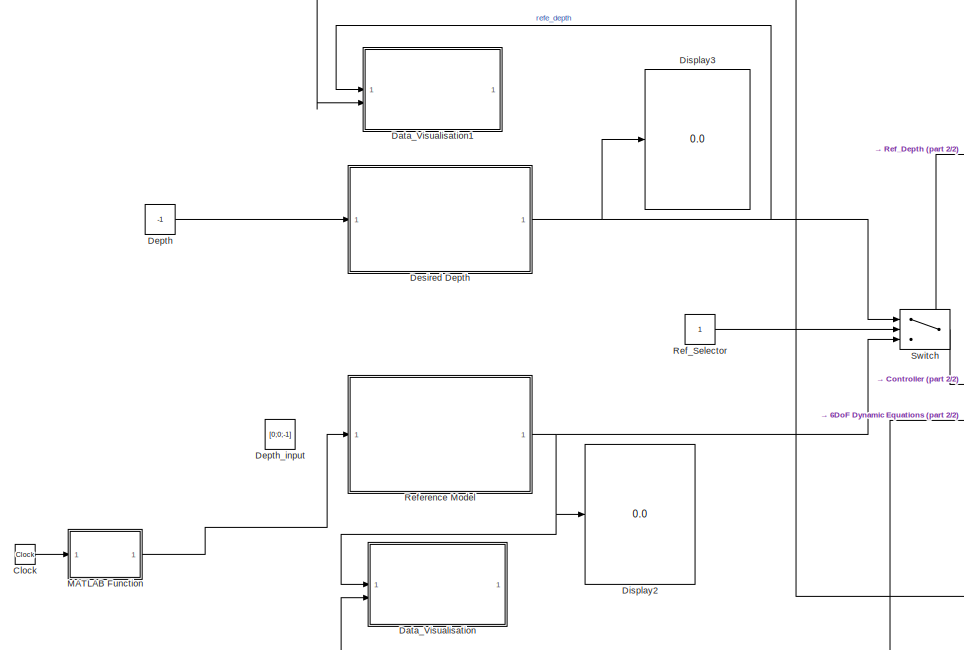
[diagram: root canvas - part 1/2, left side, full height]
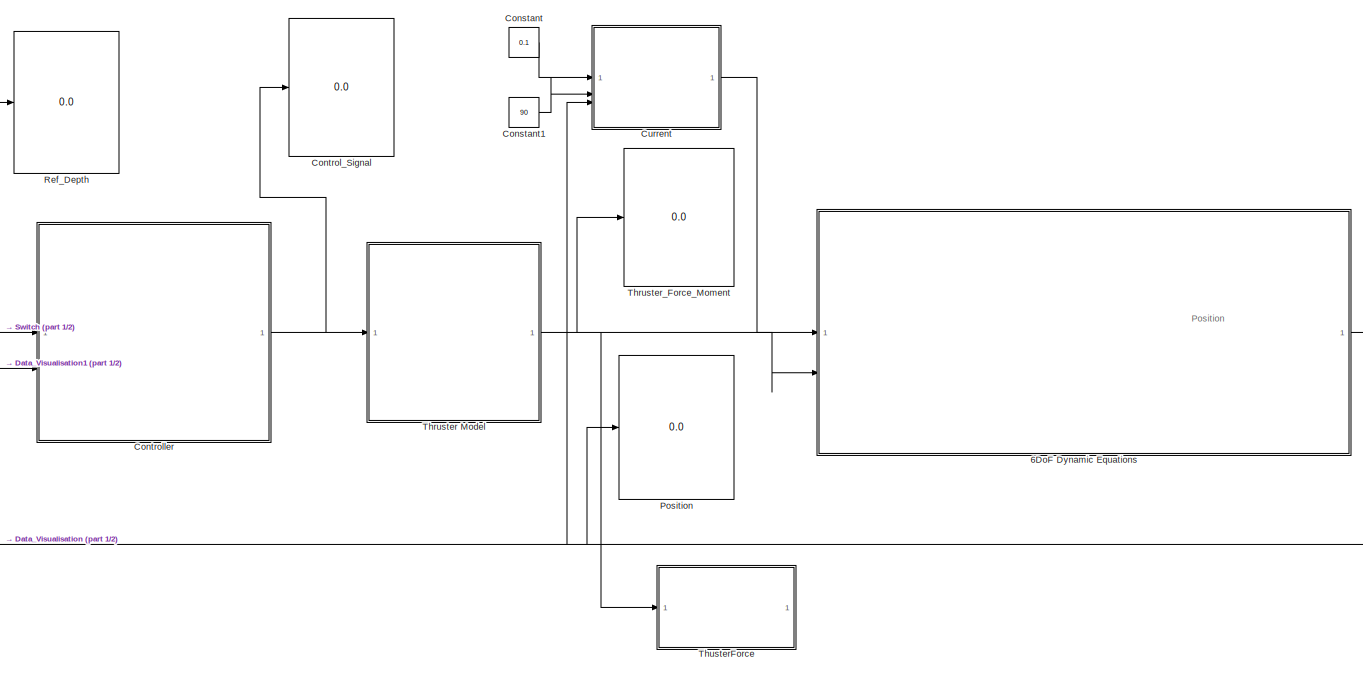
[diagram: root canvas - part 2/2, right side, full height]
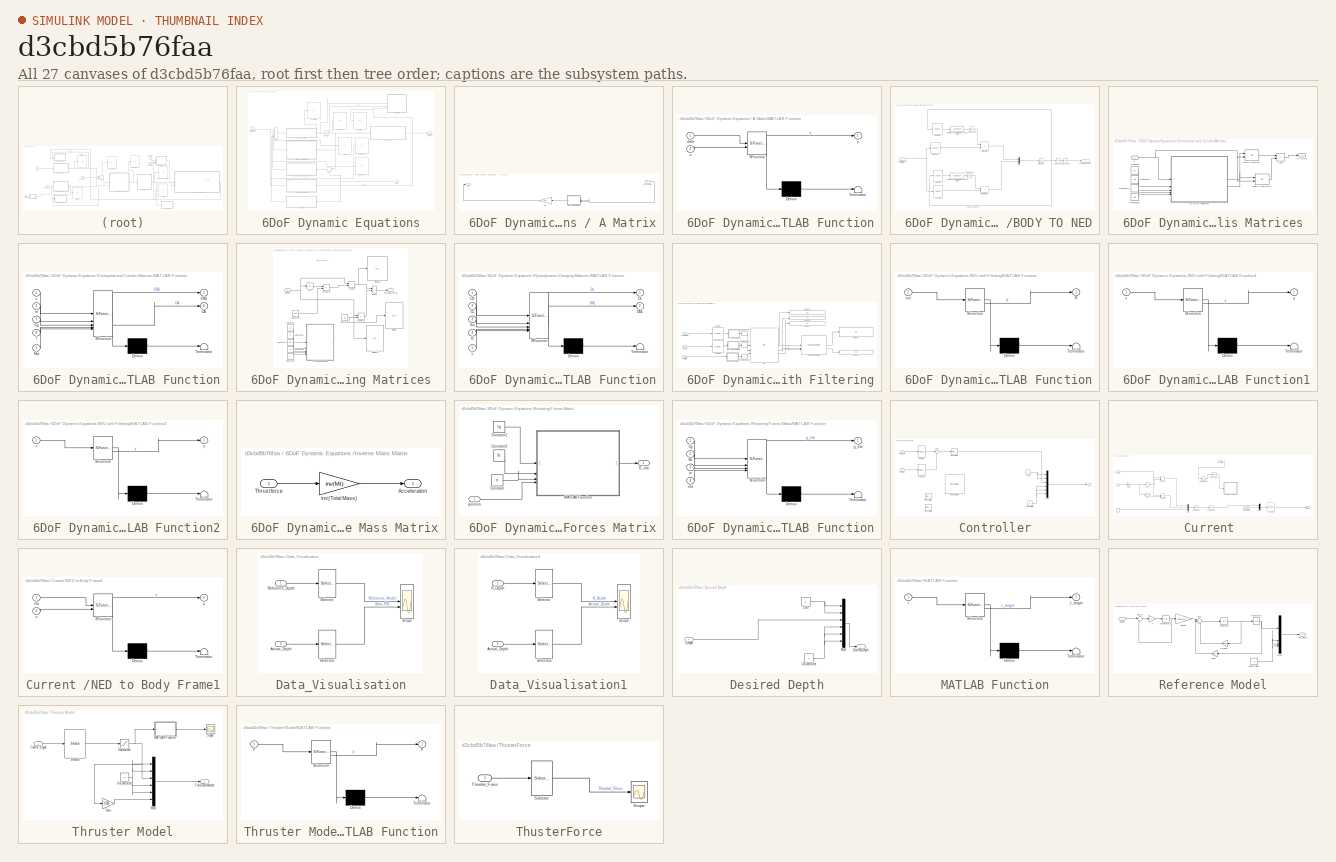
[diagram: thumbnail index - all 27 canvases of the model, root first then tree order]
MODEL slx_d3cbd5b76faa
KIND model
CONFIG AbsTol = auto
CONFIG EnableMultiTasking = off
CONFIG FixedStep = auto
CONFIG MaxStep = auto
CONFIG MinStep = auto
CONFIG RelTol = 1e-3
CONFIG SampleTimeConstraint = Unconstrained
CONFIG SolverName = VariableStepAuto
CONFIG StartTime = 0.0
CONFIG StopTime = 20
BLOCK [SubSystem]  6DoF Dynamic Equations 
BLOCK [SubSystem]  6DoF Dynamic Equations / A Matrix
BLOCK [Outport]  6DoF Dynamic Equations / A Matrix/Ac
BLOCK [Gain]  6DoF Dynamic Equations / A Matrix/MA
  Gain = Ma
  Multiplication = Matrix(K*u)
  OutDataTypeStr = Inherit: Same as input
  ParamDataTypeStr = Inherit: Same as input
BLOCK [SubSystem]  6DoF Dynamic Equations / A Matrix/MATLAB Function
  ErrorFcn = Stateflow.Translate.translate
  PermitHierarchicalResolution = ExplicitOnly
  SFBlockType = MATLAB Function
  TreatAsAtomicUnit = on
BLOCK [Demux]  6DoF Dynamic Equations / A Matrix/MATLAB Function/ Demux 
  Outputs = 1
BLOCK [S-Function]  6DoF Dynamic Equations / A Matrix/MATLAB Function/ SFunction 
  EnableBusSupport = on
  FunctionName = sf_sfun
  PortCounts = [2 2]
  SFcnIsStateOwnerBlock = off
  SFunctionDeploymentMode = off
  Tag = Stateflow S-Function 3
BLOCK [Terminator]  6DoF Dynamic Equations / A Matrix/MATLAB Function/ Terminator 
BLOCK [Inport]  6DoF Dynamic Equations / A Matrix/MATLAB Function/data
BLOCK [Inport]  6DoF Dynamic Equations / A Matrix/MATLAB Function/u
  Port = 2
BLOCK [Outport]  6DoF Dynamic Equations / A Matrix/MATLAB Function/y
BLOCK [Inport]  6DoF Dynamic Equations / A Matrix/currentvel
BLOCK [Display]  6DoF Dynamic Equations /Acceleration
  Decimation = 1
BLOCK [SubSystem]  6DoF Dynamic Equations /BODY TO NED
BLOCK [Outport]  6DoF Dynamic Equations /BODY TO NED/ Position(NED Frame)
BLOCK [Integrator]  6DoF Dynamic Equations /BODY TO NED/Integrator
BLOCK [Product]  6DoF Dynamic Equations /BODY TO NED/MatrixMultiply
  Multiplication = Matrix(*)
BLOCK [Product]  6DoF Dynamic Equations /BODY TO NED/MatrixMultiply1
  Multiplication = Matrix(*)
BLOCK [Mux]  6DoF Dynamic Equations /BODY TO NED/Mux
  DisplayOption = bar
  Inputs = 2
BLOCK [Angle2Dcm]  6DoF Dynamic Equations /BODY TO NED/Rotation Angles to Direction Cosine Matrix
  AttributesFormatString = Rotation Order: %<rotationOrder>
  rotationOrder = XYZ
BLOCK [Angle2Dcm]  6DoF Dynamic Equations /BODY TO NED/Rotation Angles to Direction Cosine Matrix1
  AttributesFormatString = Rotation Order: %<rotationOrder>
  rotationOrder = XYZ
BLOCK [Selector]  6DoF Dynamic Equations /BODY TO NED/Selector
  IndexOptions = Index vector (dialog)
  Indices = [1 2 3]
  InputPortWidth = 6
  OutputSizes = 1
BLOCK [Selector]  6DoF Dynamic Equations /BODY TO NED/Selector1
  IndexOptions = Index vector (dialog)
  Indices = [ 4 5 6]
  InputPortWidth = 6
  OutputSizes = 1
BLOCK [Selector]  6DoF Dynamic Equations /BODY TO NED/Selector2
  IndexOptions = Index vector (dialog)
  Indices = [ 4 5 6]
  InputPortWidth = 6
  OutputSizes = 1
BLOCK [Selector]  6DoF Dynamic Equations /BODY TO NED/Selector3
  IndexOptions = Index vector (dialog)
  Indices = [ 4 5 6]
  InputPortWidth = 6
  OutputSizes = 1
BLOCK [Math]  6DoF Dynamic Equations /BODY TO NED/Transpose
  Operator = transpose
BLOCK [Math]  6DoF Dynamic Equations /BODY TO NED/Transpose1
  Operator = transpose
BLOCK [Math]  6DoF Dynamic Equations /BODY TO NED/Transpose2
  Operator = transpose
BLOCK [Math]  6DoF Dynamic Equations /BODY TO NED/Transpose3
  Operator = transpose
BLOCK [Inport]  6DoF Dynamic Equations /BODY TO NED/Velocities(Body Frame)
BLOCK [SubSystem]  6DoF Dynamic Equations /Centripetal and Coriolis Matrices 
BLOCK [Sum]  6DoF Dynamic Equations /Centripetal and Coriolis Matrices /Add
  IconShape = rectangular
BLOCK [Outport]  6DoF Dynamic Equations /Centripetal and Coriolis Matrices /CA+CRB
BLOCK [Constant]  6DoF Dynamic Equations /Centripetal and Coriolis Matrices /Constant
  Value = m
BLOCK [Constant]  6DoF Dynamic Equations /Centripetal and Coriolis Matrices /Constant1
  Value = Cg
BLOCK [Constant]  6DoF Dynamic Equations /Centripetal and Coriolis Matrices /Constant2
  Value = I
BLOCK [Constant]  6DoF Dynamic Equations /Centripetal and Coriolis Matrices /Constant3
  Value = Ma
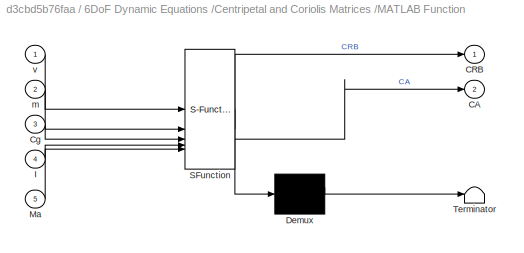
BLOCK [SubSystem]  6DoF Dynamic Equations /Centripetal and Coriolis Matrices /MATLAB Function
  ErrorFcn = Stateflow.Translate.translate
  PermitHierarchicalResolution = ExplicitOnly
  SFBlockType = MATLAB Function
  TreatAsAtomicUnit = on
BLOCK [Demux]  6DoF Dynamic Equations /Centripetal and Coriolis Matrices /MATLAB Function/ Demux 
  Outputs = 1
BLOCK [S-Function]  6DoF Dynamic Equations /Centripetal and Coriolis Matrices /MATLAB Function/ SFunction 
  EnableBusSupport = on
  FunctionName = sf_sfun
  PortCounts = [5 3]
  SFcnIsStateOwnerBlock = off
  SFunctionDeploymentMode = off
  Tag = Stateflow S-Function 2
BLOCK [Terminator]  6DoF Dynamic Equations /Centripetal and Coriolis Matrices /MATLAB Function/ Terminator 
BLOCK [Outport]  6DoF Dynamic Equations /Centripetal and Coriolis Matrices /MATLAB Function/CA
  Port = 2
BLOCK [Outport]  6DoF Dynamic Equations /Centripetal and Coriolis Matrices /MATLAB Function/CRB
BLOCK [Inport]  6DoF Dynamic Equations /Centripetal and Coriolis Matrices /MATLAB Function/Cg
  Port = 3
BLOCK [Inport]  6DoF Dynamic Equations /Centripetal and Coriolis Matrices /MATLAB Function/I
  Port = 4
BLOCK [Inport]  6DoF Dynamic Equations /Centripetal and Coriolis Matrices /MATLAB Function/Ma
  Port = 5
BLOCK [Inport]  6DoF Dynamic Equations /Centripetal and Coriolis Matrices /MATLAB Function/m
  Port = 2
BLOCK [Inport]  6DoF Dynamic Equations /Centripetal and Coriolis Matrices /MATLAB Function/v
BLOCK [Product]  6DoF Dynamic Equations /Centripetal and Coriolis Matrices /Matrix Multiply
  Multiplication = Matrix(*)
BLOCK [Product]  6DoF Dynamic Equations /Centripetal and Coriolis Matrices /Matrix Multiply1
  Multiplication = Matrix(*)
BLOCK [Inport]  6DoF Dynamic Equations /Centripetal and Coriolis Matrices /v
BLOCK [Display]  6DoF Dynamic Equations /Coriolis
  Decimation = 1
BLOCK [Inport]  6DoF Dynamic Equations /Current
BLOCK [Display]  6DoF Dynamic Equations /Damping Force
  Decimation = 1
BLOCK [Inport]  6DoF Dynamic Equations /Forces and Moments  
  Port = 2
BLOCK [SubSystem]  6DoF Dynamic Equations /Hydrodynamic Damping Matrices 
BLOCK [Constant]  6DoF Dynamic Equations /Hydrodynamic Damping Matrices /Constant
  Commented = on
  Value = CD
BLOCK [Constant]  6DoF Dynamic Equations /Hydrodynamic Damping Matrices /Constant1
  Commented = on
  Value = CL
BLOCK [Constant]  6DoF Dynamic Equations /Hydrodynamic Damping Matrices /Constant2
  Commented = on
  Value = rho
BLOCK [Constant]  6DoF Dynamic Equations /Hydrodynamic Damping Matrices /Constant3
  Commented = on
  Value = R
BLOCK [Constant]  6DoF Dynamic Equations /Hydrodynamic Damping Matrices /Constant4
  Commented = on
  Value = L
BLOCK [Constant]  6DoF Dynamic Equations /Hydrodynamic Damping Matrices /Constant5
  Value = DL
BLOCK [Constant]  6DoF Dynamic Equations /Hydrodynamic Damping Matrices /Constant6
  Value = DNL
BLOCK [Outport]  6DoF Dynamic Equations /Hydrodynamic Damping Matrices /Damping Force
BLOCK [Display]  6DoF Dynamic Equations /Hydrodynamic Damping Matrices /Display
  Decimation = 1
BLOCK [Display]  6DoF Dynamic Equations /Hydrodynamic Damping Matrices /Display1
  Decimation = 1
BLOCK [Display]  6DoF Dynamic Equations /Hydrodynamic Damping Matrices /Display2
  Decimation = 1
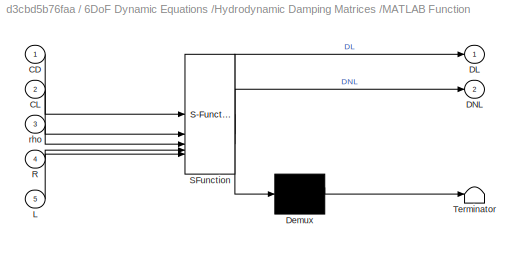
BLOCK [SubSystem]  6DoF Dynamic Equations /Hydrodynamic Damping Matrices /MATLAB Function
  Commented = on
  ErrorFcn = Stateflow.Translate.translate
  PermitHierarchicalResolution = ExplicitOnly
  SFBlockType = MATLAB Function
  TreatAsAtomicUnit = on
BLOCK [Demux]  6DoF Dynamic Equations /Hydrodynamic Damping Matrices /MATLAB Function/ Demux 
  Outputs = 1
BLOCK [S-Function]  6DoF Dynamic Equations /Hydrodynamic Damping Matrices /MATLAB Function/ SFunction 
  EnableBusSupport = on
  FunctionName = sf_sfun
  PortCounts = [5 3]
  SFcnIsStateOwnerBlock = off
  SFunctionDeploymentMode = off
  Tag = Stateflow S-Function 4
BLOCK [Terminator]  6DoF Dynamic Equations /Hydrodynamic Damping Matrices /MATLAB Function/ Terminator 
BLOCK [Inport]  6DoF Dynamic Equations /Hydrodynamic Damping Matrices /MATLAB Function/CD
BLOCK [Inport]  6DoF Dynamic Equations /Hydrodynamic Damping Matrices /MATLAB Function/CL
  Port = 2
BLOCK [Outport]  6DoF Dynamic Equations /Hydrodynamic Damping Matrices /MATLAB Function/DL
BLOCK [Outport]  6DoF Dynamic Equations /Hydrodynamic Damping Matrices /MATLAB Function/DNL
  Port = 2
BLOCK [Inport]  6DoF Dynamic Equations /Hydrodynamic Damping Matrices /MATLAB Function/L
  Port = 5
BLOCK [Inport]  6DoF Dynamic Equations /Hydrodynamic Damping Matrices /MATLAB Function/R
  Port = 4
BLOCK [Inport]  6DoF Dynamic Equations /Hydrodynamic Damping Matrices /MATLAB Function/rho
  Port = 3
BLOCK [Product]  6DoF Dynamic Equations /Hydrodynamic Damping Matrices /Product
  InputSameDT = on
  OutDataTypeStr = Inherit: Same as first input
  RndMeth = Zero
  SaturateOnIntegerOverflow = on
BLOCK [Product]  6DoF Dynamic Equations /Hydrodynamic Damping Matrices /Product1
  InputSameDT = on
  OutDataTypeStr = Inherit: Same as first input
  RndMeth = Zero
  SaturateOnIntegerOverflow = on
BLOCK [Product]  6DoF Dynamic Equations /Hydrodynamic Damping Matrices /Product2
  InputSameDT = on
  OutDataTypeStr = Inherit: Same as first input
  RndMeth = Zero
  SaturateOnIntegerOverflow = on
BLOCK [Sum]  6DoF Dynamic Equations /Hydrodynamic Damping Matrices /Sum2
  IconShape = rectangular
  InputSameDT = on
  OutDataTypeStr = Inherit: Same as first input
  SaturateOnIntegerOverflow = on
BLOCK [Inport]  6DoF Dynamic Equations /Hydrodynamic Damping Matrices /Velocity
BLOCK [Abs]  6DoF Dynamic Equations /Hydrodynamic Damping Matrices /|u|
BLOCK [SubSystem]  6DoF Dynamic Equations /IMU with Filtering
BLOCK [Inport]  6DoF Dynamic Equations /IMU with Filtering/Acceleration
BLOCK [Reference]  6DoF Dynamic Equations /IMU with Filtering/Complementary Filter  REF=mspfiltlib/Complementary Filter
  SourceBlock = mspfiltlib/Complementary Filter
  SourceType = fusion.internal.simulink.complementaryFilter
BLOCK [Display]  6DoF Dynamic Equations /IMU with Filtering/Display3
  Decimation = 1
BLOCK [Display]  6DoF Dynamic Equations /IMU with Filtering/Display4
  Decimation = 1
BLOCK [Display]  6DoF Dynamic Equations /IMU with Filtering/Display5
  Decimation = 1
BLOCK [Display]  6DoF Dynamic Equations /IMU with Filtering/Display6
  Decimation = 1
BLOCK [Display]  6DoF Dynamic Equations /IMU with Filtering/Display7
  Decimation = 1
BLOCK [Reference]  6DoF Dynamic Equations /IMU with Filtering/IMU  REF=mspsensorlib/IMU
  SourceBlock = mspsensorlib/IMU
  SourceType = fusion.simulink.imuSensor
BLOCK [SubSystem]  6DoF Dynamic Equations /IMU with Filtering/MATLAB Function
  ErrorFcn = Stateflow.Translate.translate
  PermitHierarchicalResolution = ExplicitOnly
  SFBlockType = MATLAB Function
  TreatAsAtomicUnit = on
BLOCK [Demux]  6DoF Dynamic Equations /IMU with Filtering/MATLAB Function/ Demux 
  Outputs = 1
BLOCK [S-Function]  6DoF Dynamic Equations /IMU with Filtering/MATLAB Function/ SFunction 
  EnableBusSupport = on
  FunctionName = sf_sfun
  PortCounts = [1 2]
  SFcnIsStateOwnerBlock = off
  SFunctionDeploymentMode = off
  Tag = Stateflow S-Function 5
BLOCK [Terminator]  6DoF Dynamic Equations /IMU with Filtering/MATLAB Function/ Terminator 
BLOCK [Outport]  6DoF Dynamic Equations /IMU with Filtering/MATLAB Function/R
BLOCK [Inport]  6DoF Dynamic Equations /IMU with Filtering/MATLAB Function/eul
BLOCK [SubSystem]  6DoF Dynamic Equations /IMU with Filtering/MATLAB Function1
  ErrorFcn = Stateflow.Translate.translate
  PermitHierarchicalResolution = ExplicitOnly
  SFBlockType = MATLAB Function
  TreatAsAtomicUnit = on
BLOCK [Demux]  6DoF Dynamic Equations /IMU with Filtering/MATLAB Function1/ Demux 
  Outputs = 1
BLOCK [S-Function]  6DoF Dynamic Equations /IMU with Filtering/MATLAB Function1/ SFunction 
  EnableBusSupport = on
  FunctionName = sf_sfun
  PortCounts = [1 2]
  SFcnIsStateOwnerBlock = off
  SFunctionDeploymentMode = off
  Tag = Stateflow S-Function 6
BLOCK [Terminator]  6DoF Dynamic Equations /IMU with Filtering/MATLAB Function1/ Terminator 
BLOCK [Inport]  6DoF Dynamic Equations /IMU with Filtering/MATLAB Function1/x
BLOCK [Outport]  6DoF Dynamic Equations /IMU with Filtering/MATLAB Function1/y
BLOCK [SubSystem]  6DoF Dynamic Equations /IMU with Filtering/MATLAB Function2
  ErrorFcn = Stateflow.Translate.translate
  PermitHierarchicalResolution = ExplicitOnly
  SFBlockType = MATLAB Function
  TreatAsAtomicUnit = on
BLOCK [Demux]  6DoF Dynamic Equations /IMU with Filtering/MATLAB Function2/ Demux 
  Outputs = 1
BLOCK [S-Function]  6DoF Dynamic Equations /IMU with Filtering/MATLAB Function2/ SFunction 
  EnableBusSupport = on
  FunctionName = sf_sfun
  PortCounts = [1 2]
  SFcnIsStateOwnerBlock = off
  SFunctionDeploymentMode = off
  Tag = Stateflow S-Function 7
BLOCK [Terminator]  6DoF Dynamic Equations /IMU with Filtering/MATLAB Function2/ Terminator 
BLOCK [Inport]  6DoF Dynamic Equations /IMU with Filtering/MATLAB Function2/x
BLOCK [Outport]  6DoF Dynamic Equations /IMU with Filtering/MATLAB Function2/y
BLOCK [Selector]  6DoF Dynamic Equations /IMU with Filtering/Selector
  IndexOptions = Index vector (dialog)
  Indices = [1 2 3]
  InputPortWidth = 6
  OutputSizes = 1
BLOCK [Selector]  6DoF Dynamic Equations /IMU with Filtering/Selector1
  IndexOptions = Index vector (dialog)
  Indices = [4 5 6]
  InputPortWidth = 6
  OutputSizes = 1
BLOCK [ZeroOrderHold]  6DoF Dynamic Equations /IMU with Filtering/Zero-Order Hold
  SampleTime = -1
BLOCK [ZeroOrderHold]  6DoF Dynamic Equations /IMU with Filtering/Zero-Order Hold1
  SampleTime = -1
BLOCK [ZeroOrderHold]  6DoF Dynamic Equations /IMU with Filtering/Zero-Order Hold2
  SampleTime = -1
BLOCK [Inport]  6DoF Dynamic Equations /IMU with Filtering/position
  NameLocation = top
  Port = 3
BLOCK [Inport]  6DoF Dynamic Equations /IMU with Filtering/velocity
  Port = 2
BLOCK [Integrator]  6DoF Dynamic Equations /Integrator
BLOCK [SubSystem]  6DoF Dynamic Equations /Inverse Mass Matrix
BLOCK [Outport]  6DoF Dynamic Equations /Inverse Mass Matrix/Acceleration
  VectorParamsAs1DForOutWhenUnconnected = off
BLOCK [Inport]  6DoF Dynamic Equations /Inverse Mass Matrix/Thrust force
BLOCK [Gain]  6DoF Dynamic Equations /Inverse Mass Matrix/inv(Total Mass)
  Gain = inv(Mt)
  Multiplication = Matrix(K*u)
  OutDataTypeStr = Inherit: Same as input
  ParamDataTypeStr = Inherit: Same as input
BLOCK [Display]  6DoF Dynamic Equations /Position
  Decimation = 1
BLOCK [Outport]  6DoF Dynamic Equations /Position (NED Frame)
  VectorParamsAs1DForOutWhenUnconnected = off
BLOCK [Display]  6DoF Dynamic Equations /Restoring Force
  Decimation = 1
BLOCK [SubSystem]  6DoF Dynamic Equations /Restoring Forces Matrix
BLOCK [Constant]  6DoF Dynamic Equations /Restoring Forces Matrix/Constant
  Value = m
BLOCK [Constant]  6DoF Dynamic Equations /Restoring Forces Matrix/Constant1
  Value = Cg
BLOCK [Constant]  6DoF Dynamic Equations /Restoring Forces Matrix/Constant3
  Value = Bc
BLOCK [Outport]  6DoF Dynamic Equations /Restoring Forces Matrix/G_eta
BLOCK [SubSystem]  6DoF Dynamic Equations /Restoring Forces Matrix/MATLAB Function
  ErrorFcn = Stateflow.Translate.translate
  PermitHierarchicalResolution = ExplicitOnly
  SFBlockType = MATLAB Function
  TreatAsAtomicUnit = on
BLOCK [Demux]  6DoF Dynamic Equations /Restoring Forces Matrix/MATLAB Function/ Demux 
  Outputs = 1
BLOCK [S-Function]  6DoF Dynamic Equations /Restoring Forces Matrix/MATLAB Function/ SFunction 
  EnableBusSupport = on
  FunctionName = sf_sfun
  PortCounts = [4 2]
  SFcnIsStateOwnerBlock = off
  SFunctionDeploymentMode = off
  Tag = Stateflow S-Function 1
BLOCK [Terminator]  6DoF Dynamic Equations /Restoring Forces Matrix/MATLAB Function/ Terminator 
BLOCK [Inport]  6DoF Dynamic Equations /Restoring Forces Matrix/MATLAB Function/Bc
  Port = 2
BLOCK [Inport]  6DoF Dynamic Equations /Restoring Forces Matrix/MATLAB Function/Cg
BLOCK [Inport]  6DoF Dynamic Equations /Restoring Forces Matrix/MATLAB Function/eta
  Port = 4
BLOCK [Outport]  6DoF Dynamic Equations /Restoring Forces Matrix/MATLAB Function/g_eta
BLOCK [Inport]  6DoF Dynamic Equations /Restoring Forces Matrix/MATLAB Function/m
  Port = 3
BLOCK [Inport]  6DoF Dynamic Equations /Restoring Forces Matrix/position
BLOCK [Sum]  6DoF Dynamic Equations /Sum
  Inputs = |+-
BLOCK [Sum]  6DoF Dynamic Equations /Sum1
  IconShape = rectangular
  InputSameDT = on
  Inputs = +---+
  OutDataTypeStr = Inherit: Same as first input
  SaturateOnIntegerOverflow = on
BLOCK [Display]  6DoF Dynamic Equations /Velocity
  Decimation = 1
BLOCK [Clock] Clock
BLOCK [Constant] Constant
  Value = 0.1
BLOCK [Constant] Constant1
  Value = 90
BLOCK [Display] Control_Signal
  Decimation = 1
BLOCK [SubSystem] Controller
BLOCK [Reference] Controller/MPC Controller  REF=mpclib/MPC Controller  (lib defined in mdl_ae329e0e0455)
  Commented = on
  SCDEnableBlockLinearizationSpecification = on
  SourceBlock = mpclib/MPC Controller
  SourceType = MPC
BLOCK [Mux] Controller/Mux1
  DisplayOption = bar
  Inputs = 6
BLOCK [Reference] Controller/PID Controller  REF=slpidlib/PID Controller
  LibrarySourceBlock = simulink/Continuous/PID Controller
  SourceBlock = slpidlib/PID Controller
  SourceType = PID 1dof
BLOCK [Reference] Controller/PID Controller1  REF=slpidlib/PID Controller
  Commented = on
  LibrarySourceBlock = simulink/Continuous/PID Controller
  SourceBlock = slpidlib/PID Controller
  SourceType = PID 1dof
BLOCK [Reference] Controller/PID Controller2  REF=slpidlib/PID Controller
  Commented = on
  LibrarySourceBlock = simulink/Continuous/PID Controller
  SourceBlock = slpidlib/PID Controller
  SourceType = PID 1dof
BLOCK [Inport] Controller/Positions
  Port = 2
BLOCK [Inport] Controller/Ref Depth
BLOCK [Selector] Controller/Selector
  IndexOptions = Index vector (dialog)
  Indices = [3]
  InputPortWidth = 6
  OutputSizes = 1
BLOCK [Selector] Controller/Selector1
  IndexOptions = Index vector (dialog)
  Indices = [3]
  InputPortWidth = 6
  OutputSizes = 1
BLOCK [Sum] Controller/Sum
  Inputs = |+-
BLOCK [Constant] Controller/UnControlled
  Value = 0
BLOCK [Constant] Controller/Zero
  Value = 0
BLOCK [Outport] Controller/u
BLOCK [SubSystem] Current 
  NameLocation = top
BLOCK [Inport] Current /Angle
  Port = 2
BLOCK [Constant] Current /Constant2
  Value = zeros(3,1)
BLOCK [Trigonometry] Current /Cos
BLOCK [Outport] Current /Current
  VectorParamsAs1DForOutWhenUnconnected = off
BLOCK [Gain] Current /Gain
  Gain = pi/180
BLOCK [Mux] Current /Mux
  DisplayOption = bar
  Inputs = 3
BLOCK [Mux] Current /Mux2
  DisplayOption = bar
  Inputs = 2
BLOCK [SubSystem] Current /NED to Body Frame1
  Commented = on
  ErrorFcn = Stateflow.Translate.translate
  PermitHierarchicalResolution = ExplicitOnly
  SFBlockType = MATLAB Function
  TreatAsAtomicUnit = on
BLOCK [Demux] Current /NED to Body Frame1/ Demux 
  Outputs = 1
BLOCK [S-Function] Current /NED to Body Frame1/ SFunction 
  EnableBusSupport = on
  FunctionName = sf_sfun
  PortCounts = [2 2]
  SFcnIsStateOwnerBlock = off
  SFunctionDeploymentMode = off
  Tag = Stateflow S-Function 10
BLOCK [Terminator] Current /NED to Body Frame1/ Terminator 
BLOCK [Inport] Current /NED to Body Frame1/eta
BLOCK [Inport] Current /NED to Body Frame1/u
  Port = 2
BLOCK [Outport] Current /NED to Body Frame1/y
BLOCK [Inport] Current /Position
  Port = 3
BLOCK [Product] Current /Product1
BLOCK [Product] Current /Product2
BLOCK [Selector] Current /Selector4
  IndexOptions = Index vector (dialog)
  Indices = [1 2 4 5 6 3]
  InputPortWidth = 6
  OutputSizes = 1
BLOCK [Trigonometry] Current /Sin
  Operator = cos
  OutputSignalType = real
BLOCK [Math] Current /Transpose
  Operator = transpose
BLOCK [Math] Current /Transpose1
  Operator = transpose
BLOCK [Math] Current /Transpose2
  Commented = on
  Operator = transpose
BLOCK [Math] Current /Transpose3
  Commented = on
  Operator = transpose
BLOCK [Inport] Current /Velocity
BLOCK [Constant] Current /z
  Value = 0
BLOCK [SubSystem] Data_Visualisation
  Commented = on
BLOCK [Inport] Data_Visualisation/Actual_Depth
  Port = 2
BLOCK [Inport] Data_Visualisation/Reference_Depth
BLOCK [Scope] Data_Visualisation/Scope
  Floating = off
  NumInputPorts = 2
  ScopeSpecificationString = Simulink.scopes.TimeScopeBlockCfg('CurrentConfiguration', extmgr.ConfigurationSet(extmgr.Configuration('Core','General UI',true,'FigureColor',[0.941176470588235 0.941176470588235 0.941176470588235],'DisplayFullSourceName',true),extmgr.Configuration('Core','Source UI',true),extmgr.Configuration('Sources','WiredSimulink',true),extmgr.Configuration('Visuals','Time Domain',true,'TimeAxisLabels','All',...<+2118ch>
BLOCK [Selector] Data_Visualisation/Selector
  IndexOptions = Index vector (dialog)
  Indices = [3]
  InputPortWidth = 6
  OutputSizes = 1
BLOCK [Selector] Data_Visualisation/Selector1
  IndexOptions = Index vector (dialog)
  Indices = [3]
  InputPortWidth = 6
  OutputSizes = 1
BLOCK [SubSystem] Data_Visualisation1
  Commented = on
BLOCK [Inport] Data_Visualisation1/Actual_Depth
  Port = 2
BLOCK [Inport] Data_Visualisation1/R_Depth
BLOCK [Scope] Data_Visualisation1/Scope
  Floating = off
  NumInputPorts = 2
  ScopeSpecificationString = Simulink.scopes.TimeScopeBlockCfg('CurrentConfiguration', extmgr.ConfigurationSet(extmgr.Configuration('Core','General UI',true,'FigureColor',[0.941176470588235 0.941176470588235 0.941176470588235],'DisplayFullSourceName',true),extmgr.Configuration('Core','Source UI',true),extmgr.Configuration('Sources','WiredSimulink',true),extmgr.Configuration('Visuals','Time Domain',true,'TimeAxisLabels','All',...<+2083ch>
BLOCK [Selector] Data_Visualisation1/Selector
  IndexOptions = Index vector (dialog)
  Indices = [3]
  InputPortWidth = 6
  OutputSizes = 1
BLOCK [Selector] Data_Visualisation1/Selector1
  IndexOptions = Index vector (dialog)
  Indices = [3]
  InputPortWidth = 6
  OutputSizes = 1
BLOCK [Constant] Depth
  Value = -1
BLOCK [Constant] Depth_input
  Value = [0;0;-1]
BLOCK [SubSystem] Desired Depth
BLOCK [Outport] Desired Depth/Desired_Depth
BLOCK [Mux] Desired Depth/Mux1
  DisplayOption = bar
  Inputs = 6
BLOCK [Constant] Desired Depth/UnControlled
  Value = 0
BLOCK [Constant] Desired Depth/Zero
  Value = 0
BLOCK [Inport] Desired Depth/z_target
BLOCK [Display] Display2
  Decimation = 1
BLOCK [Display] Display3
  Decimation = 1
BLOCK [SubSystem] MATLAB Function
  ErrorFcn = Stateflow.Translate.translate
  PermitHierarchicalResolution = ExplicitOnly
  SFBlockType = MATLAB Function
  TreatAsAtomicUnit = on
BLOCK [Demux] MATLAB Function/ Demux 
  Outputs = 1
BLOCK [S-Function] MATLAB Function/ SFunction 
  EnableBusSupport = on
  FunctionName = sf_sfun
  PortCounts = [1 2]
  SFcnIsStateOwnerBlock = off
  SFunctionDeploymentMode = off
  Tag = Stateflow S-Function 8
BLOCK [Terminator] MATLAB Function/ Terminator 
BLOCK [Inport] MATLAB Function/t
BLOCK [Outport] MATLAB Function/z_target
BLOCK [Display] Position
  Decimation = 1
BLOCK [Display] Ref_Depth
  Decimation = 1
BLOCK [Constant] Ref_Selector
BLOCK [SubSystem] Reference Model
BLOCK [Gain] Reference Model/Af
  Gain = Af
BLOCK [Gain] Reference Model/Delta
  Gain = Delta_2
  NameLocation = top
BLOCK [Gain] Reference Model/Delta2
  Gain = Delta_2
BLOCK [Inport] Reference Model/Depth
BLOCK [Integrator] Reference Model/Integrator
BLOCK [Integrator] Reference Model/Integrator1
BLOCK [Integrator] Reference Model/Integrator2
BLOCK [Mux] Reference Model/Mux2
  DisplayOption = bar
BLOCK [Gain] Reference Model/Omega
  Gain = Omega
  NameLocation = top
BLOCK [Outport] Reference Model/Ref_Depth
BLOCK [Sum] Reference Model/Sum
  Inputs = |+--
BLOCK [Sum] Reference Model/Sum2
  Inputs = |+-
BLOCK [Constant] Reference Model/UnControlled1
  Value = 0
BLOCK [Switch] Switch
  Criteria = u2 > Threshold
  InputSameDT = off
  SaturateOnIntegerOverflow = off
BLOCK [SubSystem] Thruster Model
BLOCK [Inport] Thruster Model/Control Signal
BLOCK [Outport] Thruster Model/Force and Moment
BLOCK [Gain] Thruster Model/Gain
  Gain = 0.005
BLOCK [SubSystem] Thruster Model/MATLAB Function
  ErrorFcn = Stateflow.Translate.translate
  PermitHierarchicalResolution = ExplicitOnly
  SFBlockType = MATLAB Function
  TreatAsAtomicUnit = on
BLOCK [Demux] Thruster Model/MATLAB Function/ Demux 
  Outputs = 1
BLOCK [S-Function] Thruster Model/MATLAB Function/ SFunction 
  EnableBusSupport = on
  FunctionName = sf_sfun
  PortCounts = [1 2]
  SFcnIsStateOwnerBlock = off
  SFunctionDeploymentMode = off
  Tag = Stateflow S-Function 9
BLOCK [Terminator] Thruster Model/MATLAB Function/ Terminator 
BLOCK [Inport] Thruster Model/MATLAB Function/F
BLOCK [Outport] Thruster Model/MATLAB Function/P
BLOCK [Mux] Thruster Model/Mux1
  DisplayOption = bar
  Inputs = 6
BLOCK [Saturate] Thruster Model/Saturation1
  LowerLimit = -1.6
  UpperLimit = 1.7
BLOCK [Scope] Thruster Model/Scope
  Floating = off
  NumInputPorts = 1
  ScopeSpecificationString = Simulink.scopes.TimeScopeBlockCfg('CurrentConfiguration', extmgr.ConfigurationSet(extmgr.Configuration('Core','General UI',true),extmgr.Configuration('Core','Source UI',true),extmgr.Configuration('Sources','WiredSimulink',true,'DataLoggingVariableName','ScopeData1'),extmgr.Configuration('Visuals','Time Domain',true),extmgr.Configuration('Tools','Plot Navigation',true),extmgr.Configuration('Tools',...<+40ch>
BLOCK [Selector] Thruster Model/Selector
  IndexOptions = Index vector (dialog)
  Indices = [3]
  InputPortWidth = 6
  OutputSizes = 1
BLOCK [Constant] Thruster Model/UnControlled
  Value = 0
BLOCK [Display] Thruster_Force_Moment
  Decimation = 1
BLOCK [SubSystem] ThusterForce
  Commented = on
BLOCK [Scope] ThusterForce/Scope
  Floating = off
  NumInputPorts = 1
  ScopeSpecificationString = Simulink.scopes.TimeScopeBlockCfg('CurrentConfiguration', extmgr.ConfigurationSet(extmgr.Configuration('Core','General UI',true,'FigureColor',[0.941176470588235 0.941176470588235 0.941176470588235],'DisplayFullSourceName',true),extmgr.Configuration('Core','Source UI',true),extmgr.Configuration('Sources','WiredSimulink',true),extmgr.Configuration('Visuals','Time Domain',true,'TimeAxisLabels','All',...<+2096ch>
BLOCK [Selector] ThusterForce/Selector
  IndexOptions = Index vector (dialog)
  Indices = [3]
  InputPortWidth = 6
  OutputSizes = 1
BLOCK [Inport] ThusterForce/Thruster_Force
ANNOTATION (root): Position
ANNOTATION  6DoF Dynamic Equations /BODY TO NED: NED(v) = J(n)*BODY(v)
ANNOTATION  6DoF Dynamic Equations /Hydrodynamic Damping Matrices : DL(v)+DNL(v)
LINE  6DoF Dynamic Equations / A Matrix/MA:1 ->  6DoF Dynamic Equations / A Matrix/Ac:1
LINE  6DoF Dynamic Equations / A Matrix/MATLAB Function:1 ->  6DoF Dynamic Equations / A Matrix/MA:1
NET  6DoF Dynamic Equations / A Matrix/currentvel:1 ->  6DoF Dynamic Equations / A Matrix/MATLAB Function:1,  6DoF Dynamic Equations / A Matrix/MATLAB Function:2
LINE  6DoF Dynamic Equations / A Matrix:1 ->  6DoF Dynamic Equations /Sum1:5
NET  6DoF Dynamic Equations /BODY TO NED/Integrator:1 ->  6DoF Dynamic Equations /BODY TO NED/Selector2:1,  6DoF Dynamic Equations /BODY TO NED/Selector3:1,  6DoF Dynamic Equations /BODY TO NED/Transpose1:1
LINE  6DoF Dynamic Equations /BODY TO NED/MatrixMultiply1:1 ->  6DoF Dynamic Equations /BODY TO NED/Mux:2
LINE  6DoF Dynamic Equations /BODY TO NED/MatrixMultiply:1 ->  6DoF Dynamic Equations /BODY TO NED/Mux:1
LINE  6DoF Dynamic Equations /BODY TO NED/Mux:1 ->  6DoF Dynamic Equations /BODY TO NED/Integrator:1
LINE  6DoF Dynamic Equations /BODY TO NED/Rotation Angles to Direction Cosine Matrix1:1 ->  6DoF Dynamic Equations /BODY TO NED/Transpose3:1
LINE  6DoF Dynamic Equations /BODY TO NED/Rotation Angles to Direction Cosine Matrix:1 ->  6DoF Dynamic Equations /BODY TO NED/Transpose:1
LINE  6DoF Dynamic Equations /BODY TO NED/Selector1:1 ->  6DoF Dynamic Equations /BODY TO NED/MatrixMultiply1:2
LINE  6DoF Dynamic Equations /BODY TO NED/Selector2:1 ->  6DoF Dynamic Equations /BODY TO NED/Rotation Angles to Direction Cosine Matrix:1
LINE  6DoF Dynamic Equations /BODY TO NED/Selector3:1 ->  6DoF Dynamic Equations /BODY TO NED/Rotation Angles to Direction Cosine Matrix1:1
LINE  6DoF Dynamic Equations /BODY TO NED/Selector:1 ->  6DoF Dynamic Equations /BODY TO NED/MatrixMultiply:2
LINE  6DoF Dynamic Equations /BODY TO NED/Transpose1:1 ->  6DoF Dynamic Equations /BODY TO NED/Transpose2:1
LINE  6DoF Dynamic Equations /BODY TO NED/Transpose2:1 ->  6DoF Dynamic Equations /BODY TO NED/ Position(NED Frame):1
LINE  6DoF Dynamic Equations /BODY TO NED/Transpose3:1 ->  6DoF Dynamic Equations /BODY TO NED/MatrixMultiply1:1
LINE  6DoF Dynamic Equations /BODY TO NED/Transpose:1 ->  6DoF Dynamic Equations /BODY TO NED/MatrixMultiply:1
NET  6DoF Dynamic Equations /BODY TO NED/Velocities(Body Frame):1 ->  6DoF Dynamic Equations /BODY TO NED/Selector1:1,  6DoF Dynamic Equations /BODY TO NED/Selector:1
NET  6DoF Dynamic Equations /BODY TO NED:1 ->  6DoF Dynamic Equations /IMU with Filtering:3,  6DoF Dynamic Equations /Position (NED Frame):1,  6DoF Dynamic Equations /Position:1,  6DoF Dynamic Equations /Restoring Forces Matrix:1
LINE  6DoF Dynamic Equations /Centripetal and Coriolis Matrices /Add:1 ->  6DoF Dynamic Equations /Centripetal and Coriolis Matrices /CA+CRB:1
LINE  6DoF Dynamic Equations /Centripetal and Coriolis Matrices /Constant1:1 ->  6DoF Dynamic Equations /Centripetal and Coriolis Matrices /MATLAB Function:3
LINE  6DoF Dynamic Equations /Centripetal and Coriolis Matrices /Constant2:1 ->  6DoF Dynamic Equations /Centripetal and Coriolis Matrices /MATLAB Function:4
LINE  6DoF Dynamic Equations /Centripetal and Coriolis Matrices /Constant3:1 ->  6DoF Dynamic Equations /Centripetal and Coriolis Matrices /MATLAB Function:5
LINE  6DoF Dynamic Equations /Centripetal and Coriolis Matrices /Constant:1 ->  6DoF Dynamic Equations /Centripetal and Coriolis Matrices /MATLAB Function:2
LINE  6DoF Dynamic Equations /Centripetal and Coriolis Matrices /MATLAB Function:1 ->  6DoF Dynamic Equations /Centripetal and Coriolis Matrices /Matrix Multiply:1
LINE  6DoF Dynamic Equations /Centripetal and Coriolis Matrices /MATLAB Function:2 ->  6DoF Dynamic Equations /Centripetal and Coriolis Matrices /Matrix Multiply1:1
LINE  6DoF Dynamic Equations /Centripetal and Coriolis Matrices /Matrix Multiply1:1 ->  6DoF Dynamic Equations /Centripetal and Coriolis Matrices /Add:2
LINE  6DoF Dynamic Equations /Centripetal and Coriolis Matrices /Matrix Multiply:1 ->  6DoF Dynamic Equations /Centripetal and Coriolis Matrices /Add:1
NET  6DoF Dynamic Equations /Centripetal and Coriolis Matrices /v:1 ->  6DoF Dynamic Equations /Centripetal and Coriolis Matrices /MATLAB Function:1,  6DoF Dynamic Equations /Centripetal and Coriolis Matrices /Matrix Multiply1:2,  6DoF Dynamic Equations /Centripetal and Coriolis Matrices /Matrix Multiply:2
NET  6DoF Dynamic Equations /Centripetal and Coriolis Matrices :1 ->  6DoF Dynamic Equations /Coriolis:1,  6DoF Dynamic Equations /Sum1:4
NET  6DoF Dynamic Equations /Current:1 ->  6DoF Dynamic Equations / A Matrix:1,  6DoF Dynamic Equations /Sum:2
LINE  6DoF Dynamic Equations /Forces and Moments  :1 ->  6DoF Dynamic Equations /Sum1:1
LINE  6DoF Dynamic Equations /Hydrodynamic Damping Matrices /Constant1:1 ->  6DoF Dynamic Equations /Hydrodynamic Damping Matrices /MATLAB Function:2
LINE  6DoF Dynamic Equations /Hydrodynamic Damping Matrices /Constant2:1 ->  6DoF Dynamic Equations /Hydrodynamic Damping Matrices /MATLAB Function:3
LINE  6DoF Dynamic Equations /Hydrodynamic Damping Matrices /Constant3:1 ->  6DoF Dynamic Equations /Hydrodynamic Damping Matrices /MATLAB Function:4
LINE  6DoF Dynamic Equations /Hydrodynamic Damping Matrices /Constant4:1 ->  6DoF Dynamic Equations /Hydrodynamic Damping Matrices /MATLAB Function:5
NET  6DoF Dynamic Equations /Hydrodynamic Damping Matrices /Constant5:1 ->  6DoF Dynamic Equations /Hydrodynamic Damping Matrices /Display:1,  6DoF Dynamic Equations /Hydrodynamic Damping Matrices /Product2:2
LINE  6DoF Dynamic Equations /Hydrodynamic Damping Matrices /Constant6:1 ->  6DoF Dynamic Equations /Hydrodynamic Damping Matrices /Product1:2
LINE  6DoF Dynamic Equations /Hydrodynamic Damping Matrices /Constant:1 ->  6DoF Dynamic Equations /Hydrodynamic Damping Matrices /MATLAB Function:1
LINE  6DoF Dynamic Equations /Hydrodynamic Damping Matrices /Product1:1 ->  6DoF Dynamic Equations /Hydrodynamic Damping Matrices /Product:2
LINE  6DoF Dynamic Equations /Hydrodynamic Damping Matrices /Product2:1 ->  6DoF Dynamic Equations /Hydrodynamic Damping Matrices /Sum2:2
NET  6DoF Dynamic Equations /Hydrodynamic Damping Matrices /Product:1 ->  6DoF Dynamic Equations /Hydrodynamic Damping Matrices /Display1:1,  6DoF Dynamic Equations /Hydrodynamic Damping Matrices /Sum2:1
LINE  6DoF Dynamic Equations /Hydrodynamic Damping Matrices /Sum2:1 ->  6DoF Dynamic Equations /Hydrodynamic Damping Matrices /Damping Force:1
NET  6DoF Dynamic Equations /Hydrodynamic Damping Matrices /Velocity:1 ->  6DoF Dynamic Equations /Hydrodynamic Damping Matrices /Display2:1,  6DoF Dynamic Equations /Hydrodynamic Damping Matrices /Product2:1,  6DoF Dynamic Equations /Hydrodynamic Damping Matrices /Product:1,  6DoF Dynamic Equations /Hydrodynamic Damping Matrices /|u|:1
LINE  6DoF Dynamic Equations /Hydrodynamic Damping Matrices /|u|:1 ->  6DoF Dynamic Equations /Hydrodynamic Damping Matrices /Product1:1
NET  6DoF Dynamic Equations /Hydrodynamic Damping Matrices :1 ->  6DoF Dynamic Equations /Damping Force:1,  6DoF Dynamic Equations /Sum1:3
LINE  6DoF Dynamic Equations /IMU with Filtering/Acceleration:1 ->  6DoF Dynamic Equations /IMU with Filtering/Selector:1
LINE  6DoF Dynamic Equations /IMU with Filtering/Complementary Filter:1 ->  6DoF Dynamic Equations /IMU with Filtering/Display3:1
LINE  6DoF Dynamic Equations /IMU with Filtering/Complementary Filter:2 ->  6DoF Dynamic Equations /IMU with Filtering/Display4:1
NET  6DoF Dynamic Equations /IMU with Filtering/IMU:1 ->  6DoF Dynamic Equations /IMU with Filtering/Complementary Filter:1,  6DoF Dynamic Equations /IMU with Filtering/Display5:1
NET  6DoF Dynamic Equations /IMU with Filtering/IMU:2 ->  6DoF Dynamic Equations /IMU with Filtering/Complementary Filter:2,  6DoF Dynamic Equations /IMU with Filtering/Display6:1
NET  6DoF Dynamic Equations /IMU with Filtering/IMU:3 ->  6DoF Dynamic Equations /IMU with Filtering/Complementary Filter:3,  6DoF Dynamic Equations /IMU with Filtering/Display7:1
LINE  6DoF Dynamic Equations /IMU with Filtering/MATLAB Function1:1 ->  6DoF Dynamic Equations /IMU with Filtering/Zero-Order Hold:1
LINE  6DoF Dynamic Equations /IMU with Filtering/MATLAB Function2:1 ->  6DoF Dynamic Equations /IMU with Filtering/Zero-Order Hold1:1
LINE  6DoF Dynamic Equations /IMU with Filtering/MATLAB Function:1 ->  6DoF Dynamic Equations /IMU with Filtering/Zero-Order Hold2:1
LINE  6DoF Dynamic Equations /IMU with Filtering/Selector1:1 ->  6DoF Dynamic Equations /IMU with Filtering/MATLAB Function2:1
LINE  6DoF Dynamic Equations /IMU with Filtering/Selector:1 ->  6DoF Dynamic Equations /IMU with Filtering/MATLAB Function1:1
LINE  6DoF Dynamic Equations /IMU with Filtering/Zero-Order Hold1:1 ->  6DoF Dynamic Equations /IMU with Filtering/IMU:2
LINE  6DoF Dynamic Equations /IMU with Filtering/Zero-Order Hold2:1 ->  6DoF Dynamic Equations /IMU with Filtering/IMU:3
LINE  6DoF Dynamic Equations /IMU with Filtering/Zero-Order Hold:1 ->  6DoF Dynamic Equations /IMU with Filtering/IMU:1
LINE  6DoF Dynamic Equations /IMU with Filtering/position:1 ->  6DoF Dynamic Equations /IMU with Filtering/MATLAB Function:1
LINE  6DoF Dynamic Equations /IMU with Filtering/velocity:1 ->  6DoF Dynamic Equations /IMU with Filtering/Selector1:1
NET  6DoF Dynamic Equations /Integrator:1 ->  6DoF Dynamic Equations /BODY TO NED:1,  6DoF Dynamic Equations /Centripetal and Coriolis Matrices :1,  6DoF Dynamic Equations /IMU with Filtering:2,  6DoF Dynamic Equations /Sum:1,  6DoF Dynamic Equations /Velocity:1
LINE  6DoF Dynamic Equations /Inverse Mass Matrix/Thrust force:1 ->  6DoF Dynamic Equations /Inverse Mass Matrix/inv(Total Mass):1
LINE  6DoF Dynamic Equations /Inverse Mass Matrix/inv(Total Mass):1 ->  6DoF Dynamic Equations /Inverse Mass Matrix/Acceleration:1
NET  6DoF Dynamic Equations /Inverse Mass Matrix:1 ->  6DoF Dynamic Equations /Acceleration:1,  6DoF Dynamic Equations /IMU with Filtering:1,  6DoF Dynamic Equations /Integrator:1
LINE  6DoF Dynamic Equations /Restoring Forces Matrix/Constant1:1 ->  6DoF Dynamic Equations /Restoring Forces Matrix/MATLAB Function:1
LINE  6DoF Dynamic Equations /Restoring Forces Matrix/Constant3:1 ->  6DoF Dynamic Equations /Restoring Forces Matrix/MATLAB Function:2
LINE  6DoF Dynamic Equations /Restoring Forces Matrix/Constant:1 ->  6DoF Dynamic Equations /Restoring Forces Matrix/MATLAB Function:3
LINE  6DoF Dynamic Equations /Restoring Forces Matrix/MATLAB Function:1 ->  6DoF Dynamic Equations /Restoring Forces Matrix/G_eta:1
LINE  6DoF Dynamic Equations /Restoring Forces Matrix/position:1 ->  6DoF Dynamic Equations /Restoring Forces Matrix/MATLAB Function:4
NET  6DoF Dynamic Equations /Restoring Forces Matrix:1 ->  6DoF Dynamic Equations /Restoring Force:1,  6DoF Dynamic Equations /Sum1:2
LINE  6DoF Dynamic Equations /Sum1:1 ->  6DoF Dynamic Equations /Inverse Mass Matrix:1
LINE  6DoF Dynamic Equations /Sum:1 ->  6DoF Dynamic Equations /Hydrodynamic Damping Matrices :1
NET  6DoF Dynamic Equations :1 -> Controller:2, Current :3, Data_Visualisation1:2, Data_Visualisation:2, Position:1
LINE Clock:1 -> MATLAB Function:1
LINE Constant1:1 -> Current :2
LINE Constant:1 -> Current :1
LINE Controller/Mux1:1 -> Controller/u:1
LINE Controller/PID Controller:1 -> Controller/Mux1:3
LINE Controller/Positions:1 -> Controller/Selector1:1
LINE Controller/Ref Depth:1 -> Controller/Selector:1
LINE Controller/Selector1:1 -> Controller/Sum:2
LINE Controller/Selector:1 -> Controller/Sum:1
LINE Controller/Sum:1 -> Controller/PID Controller:1
NET Controller/UnControlled:1 -> Controller/Mux1:4, Controller/Mux1:5, Controller/Mux1:6
NET Controller/Zero:1 -> Controller/Mux1:1, Controller/Mux1:2
NET Controller:1 -> Control_Signal:1, Thruster Model:1
LINE Current /Angle:1 -> Current /Gain:1
LINE Current /Constant2:1 -> Current /Mux2:2
LINE Current /Cos:1 -> Current /Product2:2
NET Current /Gain:1 -> Current /Cos:1, Current /Sin:1
LINE Current /Mux2:1 -> Current /Selector4:1
LINE Current /Mux:1 -> Current /Transpose:1
LINE Current /Position:1 -> Current /Transpose2:1
LINE Current /Product1:1 -> Current /Mux:1
LINE Current /Product2:1 -> Current /Mux:2
LINE Current /Selector4:1 -> Current /Current:1
LINE Current /Sin:1 -> Current /Product1:2
LINE Current /Transpose1:1 -> Current /Mux2:1
LINE Current /Transpose2:1 -> Current /Transpose3:1
LINE Current /Transpose3:1 -> Current /NED to Body Frame1:1
LINE Current /Transpose:1 -> Current /Transpose1:1
NET Current /Velocity:1 -> Current /Product1:1, Current /Product2:1
LINE Current /z:1 -> Current /Mux:3
LINE Current :1 ->  6DoF Dynamic Equations :1
LINE Data_Visualisation/Actual_Depth:1 -> Data_Visualisation/Selector1:1
LINE Data_Visualisation/Reference_Depth:1 -> Data_Visualisation/Selector:1
LINE Data_Visualisation/Selector1:1 -> Data_Visualisation/Scope:2
LINE Data_Visualisation/Selector:1 -> Data_Visualisation/Scope:1
LINE Data_Visualisation1/Actual_Depth:1 -> Data_Visualisation1/Selector1:1
LINE Data_Visualisation1/R_Depth:1 -> Data_Visualisation1/Selector:1
LINE Data_Visualisation1/Selector1:1 -> Data_Visualisation1/Scope:2
LINE Data_Visualisation1/Selector:1 -> Data_Visualisation1/Scope:1
LINE Depth:1 -> Desired Depth:1
LINE Desired Depth/Mux1:1 -> Desired Depth/Desired_Depth:1
NET Desired Depth/UnControlled:1 -> Desired Depth/Mux1:4, Desired Depth/Mux1:5, Desired Depth/Mux1:6
NET Desired Depth/Zero:1 -> Desired Depth/Mux1:1, Desired Depth/Mux1:2
LINE Desired Depth/z_target:1 -> Desired Depth/Mux1:3
NET Desired Depth:1 -> Data_Visualisation1:1, Display3:1, Switch:1
LINE MATLAB Function:1 -> Reference Model:1
LINE Ref_Selector:1 -> Switch:2
LINE Reference Model/Af:1 -> Reference Model/Integrator2:1
LINE Reference Model/Delta2:1 -> Reference Model/Sum:1
LINE Reference Model/Delta:1 -> Reference Model/Sum:2
LINE Reference Model/Depth:1 -> Reference Model/Sum2:1
NET Reference Model/Integrator1:1 -> Reference Model/Delta:1, Reference Model/Mux2:1
NET Reference Model/Integrator2:1 -> Reference Model/Delta2:1, Reference Model/Sum2:2
NET Reference Model/Integrator:1 -> Reference Model/Integrator1:1, Reference Model/Omega:1
LINE Reference Model/Mux2:1 -> Reference Model/Ref_Depth:1
LINE Reference Model/Omega:1 -> Reference Model/Sum:3
LINE Reference Model/Sum2:1 -> Reference Model/Af:1
LINE Reference Model/Sum:1 -> Reference Model/Integrator:1
NET Reference Model/UnControlled1:1 -> Reference Model/Mux2:2, Reference Model/Mux2:3, Reference Model/Mux2:4
NET Reference Model:1 -> Data_Visualisation:1, Display2:1, Switch:3
NET Switch:1 -> Controller:1, Ref_Depth:1
LINE Thruster Model/Control Signal:1 -> Thruster Model/Selector:1
LINE Thruster Model/Gain:1 -> Thruster Model/Mux1:6
LINE Thruster Model/MATLAB Function:1 -> Thruster Model/Scope:1
LINE Thruster Model/Mux1:1 -> Thruster Model/Force and Moment:1
NET Thruster Model/Saturation1:1 -> Thruster Model/Gain:1, Thruster Model/MATLAB Function:1, Thruster Model/Mux1:3
LINE Thruster Model/Selector:1 -> Thruster Model/Saturation1:1
NET Thruster Model/UnControlled:1 -> Thruster Model/Mux1:1, Thruster Model/Mux1:2, Thruster Model/Mux1:4, Thruster Model/Mux1:5
NET Thruster Model:1 ->  6DoF Dynamic Equations :2, Thruster_Force_Moment:1, ThusterForce:1
LINE ThusterForce/Selector:1 -> ThusterForce/Scope:1
LINE ThusterForce/Thruster_Force:1 -> ThusterForce/Selector:1
note: NET lines group one-source signal fan-out (src -> all destinations, sorted); 1:1 wires keep LINE
CHART  6DoF Dynamic Equations
/Restoring Forces Matrix/MATLAB Function states=1 transitions=1
  STATE_LABEL 'eML_blk_kernel()'
  STATE_LABEL 'SCRIPT:\n\nfunction g_eta = g_eta_fun(Cg, Bc,m, eta)\n    zg = Cg(3);\n    zb = Bc(3);\n    g = 9.81;\n    BGz = zb-zg;\n    phi   = eta(4);\n    theta = eta(5);\n    W = m * g;\n    B = 2.25 * g;\n    g_eta = [ (W - B) * sin(theta);\n             -(W - B) * cos(theta) * sin(phi);\n             -(W - B) * cos(theta) * cos(phi);\n              BGz*W*cos(theta)*sin(phi);\n              BGz*W*sin(theta);\n          ...<+26ch>'
CHART  6DoF Dynamic Equations
/Centripetal and Coriolis Matrices /MATLAB Function states=1 transitions=1
  STATE_LABEL 'eML_blk_kernel()'
  STATE_LABEL 'SCRIPT:\nfunction [CRB, CA] = CoriolisMatrices(v, m, Cg, I, Ma)\n    % Moments of Inertia\n    Ixx = I(1); Iyy = I(2); Izz = I(3);\n    \n    % Linear and Angular Velocities\n    v_lin = v(1:3);  % [u, v, w]\n    v_ang = v(4:6);  % [p, q, r]\n\n    % Skew-Symmetric Matrix Function\n    S = @(x) [  0   -x(3)  x(2);\n               x(3)   0   -x(1);\n              -x(2)  x(1)   0];\n\n    % Rigid-Body Coriolis Ma...<+373ch>'
CHART  6DoF Dynamic Equations
/ A Matrix/MATLAB Function states=1 transitions=1
  STATE_LABEL 'eML_blk_kernel()'
  STATE_LABEL 'SCRIPT:\nfunction y = fcn(data, u)\n\ny = zeros(6,1);\ny =[0 -u(6) u(5) 0 0 0;u(6) 0 -u(4) 0 0 0;-u(5) u(4) 0 0 0 0;0 0 0 0 0 0;0 0 0 0 0 0;0 0 0 0 0 0]*data;'
CHART  6DoF Dynamic Equations
/Hydrodynamic Damping Matrices /MATLAB Function states=1 transitions=1
  STATE_LABEL 'eML_blk_kernel()'
  STATE_LABEL 'SCRIPT:\nfunction [DL, DNL] = computeDampingMatrices(CD,CL, rho, R, L)\n    % Computes Linear and Quadratic Damping Matrices for an AUV.\n    %\n    % Inputs:\n    %   CD    - Drag coefficients [Xu, Yv, Zw, Kp, Mq, Nr] (1x6)\n    %   CL    - Lift Coefficients [Kpp, Mqq, Nrr]\n    %   rho   - Water density (kg/m^3)\n    %   R     - AUV radius (m)\n    %   L     - Characteristic length (e.g., fin span, m)\n  ...<+1696ch>'
CHART  6DoF Dynamic Equations
/IMU with Filtering/MATLAB Function states=1 transitions=1
  STATE_LABEL 'eML_blk_kernel()'
  STATE_LABEL "SCRIPT:\nfunction R = eul2R(eul)\n\n% Extract [roll, pitch, yaw] from eul = [x y z roll pitch yaw]\nangles = eul(4:6);  % This will be a 1x3 or 3x1\n\n% Reshape to 1x3 row vector \nangles = reshape(angles, 1, 3);\n\n% rotation matrix\nR = eul2rotm(angles, 'XYZ');\nend\n"
CHART  6DoF Dynamic Equations
/IMU with Filtering/MATLAB Function1 states=1 transitions=1
  STATE_LABEL 'eML_blk_kernel()'
  STATE_LABEL 'SCRIPT:\nfunction y = toRow(x)\n\ny = reshape(x, 1, []);\n'
CHART  6DoF Dynamic Equations
/IMU with Filtering/MATLAB Function2 states=1 transitions=1
  STATE_LABEL 'eML_blk_kernel()'
  STATE_LABEL 'SCRIPT:\nfunction y = toRow(x)\n\ny = reshape(x, 1, []);\n'
CHART MATLAB Function states=1 transitions=1
  STATE_LABEL 'eML_blk_kernel()'
  STATE_LABEL 'SCRIPT:\nfunction z_target = depth_sequence_controller(t)\n% This function outputs a target depth based on simulation time.\n% Sequence: Dive to 0.5m → wait 30s → dive to 1.0m → wait → dive to 1.5m → wait → return to 0m\n\n% Define depth setpoints (in meters, negative for underwater)\ndepths = [0.5, 1.0, 1.5, 0.0];\n\n% Wait duration at each depth (in seconds)\nwait_time = 30;\n\n% Total duration per stage (...<+342ch>'
CHART Thruster Model/MATLAB Function states=1 transitions=1
  STATE_LABEL 'eML_blk_kernel()'
  STATE_LABEL 'SCRIPT:\nfunction P = thrust_power(F)\n% Continuous power cost function for APISQUENN U2 thruster\n% Input:\n%   F - Thrust force in Newtons (can be scalar or vector)\n% Output:\n%   P - Power in Watts (same shape as F)\n\n% Convert Newtons to kg-equivalent\nF_kg = F;\n\n% Voltage\nV = 16;\n\n% Preallocate output\nP = zeros(size(F_kg));\n\n% Polynomial coefficients \n% Forward: I = a_f * T + b_f\na_f = 5.0;\nb_f = -0...<+395ch>'
CHART Current /NED to Body Frame1 states=1 transitions=1
  STATE_LABEL 'eML_blk_kernel()'
  STATE_LABEL "SCRIPT:\nfunction y = rotation_matrix(eta,    u)\n  \n  % eta = wrapToPi(eta(3));\n\n  rot_eta = [cos(eta(3)) -sin(eta(3)) 0;\n             sin(eta(3)) cos(eta(3)) 0;\n             0 0 1];\n\n  % u(3) = wrapToPi(u(3));\n\n  %rot_eta = rotz(eta(3));\n  p_comp = rot_eta.' * u;\n\n\ny = p_comp;\n"
CHART  states=0 transitions=0
CHART  states=0 transitions=0
CHART  states=0 transitions=0
CHART  states=0 transitions=0
CHART  states=0 transitions=0
CHART  states=0 transitions=0
CHART  states=0 transitions=0
CHART  states=0 transitions=0
CHART  states=0 transitions=0
CHART  states=0 transitions=0
